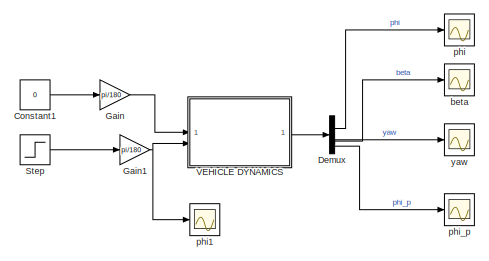
[diagram: root canvas - part 1/2, top left region]
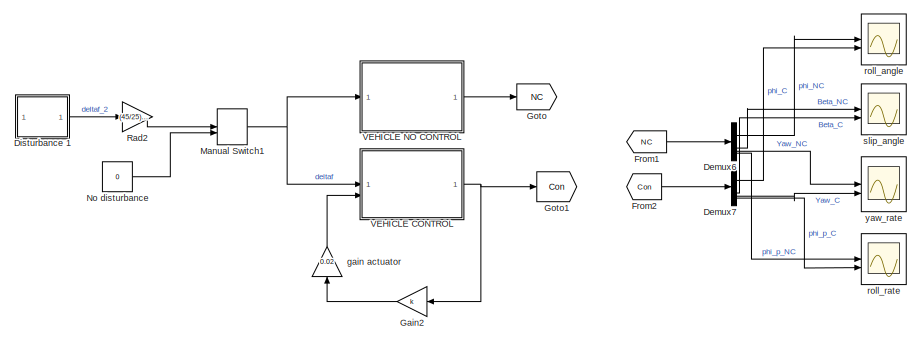
[diagram: root canvas - part 2/2, bottom right region]
MODEL slx_f5b43a20f666
KIND model
CONFIG AbsTol = auto
CONFIG EnableMultiTasking = off
CONFIG FixedStep = auto
CONFIG MaxStep = auto
CONFIG MinStep = auto
CONFIG RelTol = 1e-3
CONFIG SampleTimeConstraint = Unconstrained
CONFIG SolverName = VariableStepAuto
CONFIG StartTime = 0.0
CONFIG StopTime = 5
BLOCK [Constant] Constant1
  Value = 0
BLOCK [Demux] Demux
BLOCK [Demux] Demux6
BLOCK [Demux] Demux7
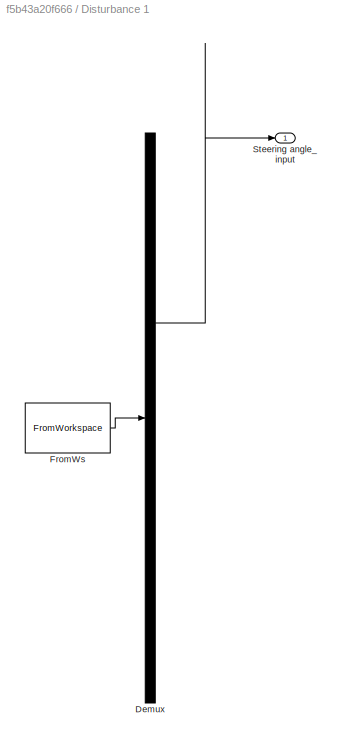
BLOCK [SubSystem] Disturbance 1
  ClipboardFcn = sigbuilder_block('clipboard');
  CloseFcn = sigbuilder_block('close');
  ContinueFcn = sigbuilder_block('continue');
  CopyFcn = sigbuilder_block('copy');
  DeleteFcn = sigbuilder_block('delete');
  LoadFcn = sigbuilder_block('load');
  MaskHideContents = on
  ModelCloseFcn = sigbuilder_block('modelClose');
  NameChangeFcn = sigbuilder_block('namechange');
  OpenFcn = sigbuilder_block('open',[265.8 141.6 550.8 400.2 ]);
  PauseFcn = sigbuilder_block('pause');
  PreSaveFcn = sigbuilder_block('preSave');
  StartFcn = sigbuilder_block('start');
  StopFcn = sigbuilder_block('stop');
  Tag = STV Subsys
BLOCK [Demux] Disturbance 1/Demux
  DisplayOption = none
  Outputs = 1
  Tag = STV Demux
BLOCK [FromWorkspace] Disturbance 1/FromWs
  Tag = STV FromWs
  VariableName = tuvar
BLOCK [Outport] Disturbance 1/Steering angle_ input
  Tag = STV Outport
BLOCK [From] From1
  GotoTag = NC
BLOCK [From] From2
  GotoTag = Con
BLOCK [Gain] Gain
  Gain = pi/180
BLOCK [Gain] Gain1
  Gain = pi/180
BLOCK [Gain] Gain2
  Gain = k
  Multiplication = Matrix(K*u)
  NameLocation = top
BLOCK [Goto] Goto
  GotoTag = NC
BLOCK [Goto] Goto1
  GotoTag = Con
BLOCK [ManualSwitch] Manual Switch1
BLOCK [Constant] No disturbance
  Value = 0
BLOCK [Gain] Rad2
  Gain = (45/25)*(pi/180)
BLOCK [Step] Step
  After = 3
  SampleTime = 0
  Time = 0
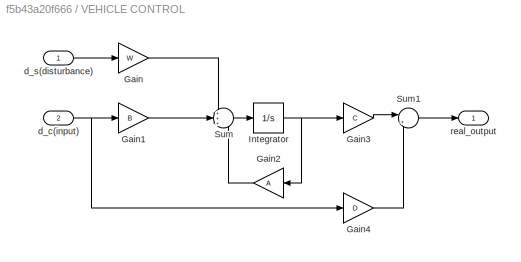
BLOCK [SubSystem] VEHICLE CONTROL
BLOCK [Gain] VEHICLE CONTROL/Gain
  Gain = W
  Multiplication = Matrix(K*u)
BLOCK [Gain] VEHICLE CONTROL/Gain1
  Gain = B
  Multiplication = Matrix(K*u)
BLOCK [Gain] VEHICLE CONTROL/Gain2
  Gain = A
  Multiplication = Matrix(K*u)
BLOCK [Gain] VEHICLE CONTROL/Gain3
  Gain = C
  Multiplication = Matrix(K*u)
BLOCK [Gain] VEHICLE CONTROL/Gain4
  Gain = D
  Multiplication = Matrix(K*u)
BLOCK [Integrator] VEHICLE CONTROL/Integrator
  InitialCondition = [0, 0, 0, 0]
BLOCK [Sum] VEHICLE CONTROL/Sum
  Inputs = +++
BLOCK [Sum] VEHICLE CONTROL/Sum1
  Inputs = |++
BLOCK [Inport] VEHICLE CONTROL/d_c(input)
  Port = 2
BLOCK [Inport] VEHICLE CONTROL/d_s(disturbance)
BLOCK [Outport] VEHICLE CONTROL/real_output
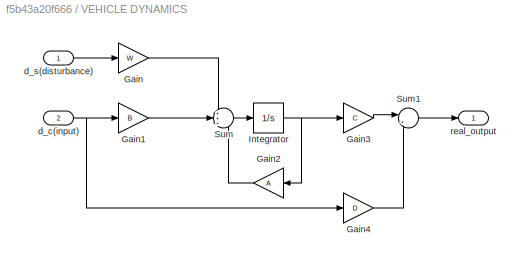
BLOCK [SubSystem] VEHICLE DYNAMICS
BLOCK [Gain] VEHICLE DYNAMICS/Gain
  Gain = W
  Multiplication = Matrix(K*u)
BLOCK [Gain] VEHICLE DYNAMICS/Gain1
  Gain = B
  Multiplication = Matrix(K*u)
BLOCK [Gain] VEHICLE DYNAMICS/Gain2
  Gain = A
  Multiplication = Matrix(K*u)
BLOCK [Gain] VEHICLE DYNAMICS/Gain3
  Gain = C
  Multiplication = Matrix(K*u)
BLOCK [Gain] VEHICLE DYNAMICS/Gain4
  Gain = D
  Multiplication = Matrix(K*u)
BLOCK [Integrator] VEHICLE DYNAMICS/Integrator
  InitialCondition = [0, 0, 0, 0]
BLOCK [Sum] VEHICLE DYNAMICS/Sum
  Inputs = +++
BLOCK [Sum] VEHICLE DYNAMICS/Sum1
  Inputs = |++
BLOCK [Inport] VEHICLE DYNAMICS/d_c(input)
  Port = 2
BLOCK [Inport] VEHICLE DYNAMICS/d_s(disturbance)
BLOCK [Outport] VEHICLE DYNAMICS/real_output
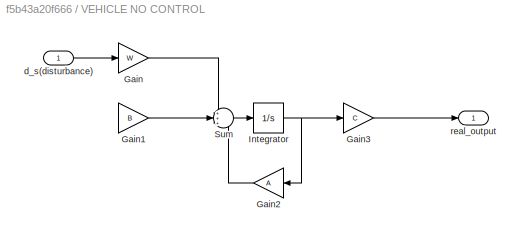
BLOCK [SubSystem] VEHICLE NO CONTROL
BLOCK [Gain] VEHICLE NO CONTROL/Gain
  Gain = W
  Multiplication = Matrix(K*u)
BLOCK [Gain] VEHICLE NO CONTROL/Gain1
  Gain = B
  Multiplication = Matrix(K*u)
BLOCK [Gain] VEHICLE NO CONTROL/Gain2
  Gain = A
  Multiplication = Matrix(K*u)
BLOCK [Gain] VEHICLE NO CONTROL/Gain3
  Gain = C
  Multiplication = Matrix(K*u)
BLOCK [Integrator] VEHICLE NO CONTROL/Integrator
  InitialCondition = [0, 0, 0, 0]
BLOCK [Sum] VEHICLE NO CONTROL/Sum
  Inputs = +++
BLOCK [Inport] VEHICLE NO CONTROL/d_s(disturbance)
BLOCK [Outport] VEHICLE NO CONTROL/real_output
BLOCK [Scope] beta
  Floating = off
  NumInputPorts = 1
  ScopeSpecificationString = Simulink.scopes.TimeScopeBlockCfg('CurrentConfiguration', extmgr.ConfigurationSet(extmgr.Configuration('Core','General UI',true,'FigureColor',[1 1 1]),extmgr.Configuration('Core','Source UI',true),extmgr.Configuration('Sources','WiredSimulink',true,'DataLoggingVariableName','ScopeData1'),extmgr.Configuration('Visuals','Time Domain',true,'SerializedDisplays',{struct('MinYLimReal','-0.28779','MaxYLi...<+1521ch>
BLOCK [Gain] gain actuator
  Gain = 0.02
  NameLocation = left
BLOCK [Scope] phi
  Floating = off
  NumInputPorts = 1
  ScopeSpecificationString = Simulink.scopes.TimeScopeBlockCfg('CurrentConfiguration', extmgr.ConfigurationSet(extmgr.Configuration('Core','General UI',true,'FigureColor',[1 1 1]),extmgr.Configuration('Core','Source UI',true),extmgr.Configuration('Sources','WiredSimulink',true),extmgr.Configuration('Visuals','Time Domain',true,'SerializedDisplays',{struct('MinYLimReal','-0.01023','MaxYLimReal','0.02353','YLabelReal','','MinYL...<+1534ch>
BLOCK [Scope] phi1
  Floating = off
  NumInputPorts = 1
  ScopeSpecificationString = Simulink.scopes.TimeScopeBlockCfg('CurrentConfiguration', extmgr.ConfigurationSet(extmgr.Configuration('Core','General UI',true,'FigureColor',[1 1 1]),extmgr.Configuration('Core','Source UI',true),extmgr.Configuration('Sources','WiredSimulink',true,'DataLoggingVariableName','ScopeData4'),extmgr.Configuration('Visuals','Time Domain',true,'SerializedDisplays',{struct('MinYLimReal','-0.00654','MaxYLi...<+1583ch>
BLOCK [Scope] phi_p
  Floating = off
  NumInputPorts = 1
  ScopeSpecificationString = Simulink.scopes.TimeScopeBlockCfg('CurrentConfiguration', extmgr.ConfigurationSet(extmgr.Configuration('Core','General UI',true,'FigureColor',[1 1 1]),extmgr.Configuration('Core','Source UI',true),extmgr.Configuration('Sources','WiredSimulink',true,'DataLoggingVariableName','ScopeData3'),extmgr.Configuration('Visuals','Time Domain',true,'SerializedDisplays',{struct('MinYLimReal','-0.05292','MaxYLi...<+1575ch>
BLOCK [Scope] roll_angle
  Floating = off
  NumInputPorts = 2
  ScopeSpecificationString = Simulink.scopes.TimeScopeBlockCfg('CurrentConfiguration', extmgr.ConfigurationSet(extmgr.Configuration('Core','General UI',true,'FigureColor',[1 1 1]),extmgr.Configuration('Core','Source UI',true),extmgr.Configuration('Sources','WiredSimulink',true,'DataLoggingVariableName','ScopeData1'),extmgr.Configuration('Visuals','Time Domain',true,'SerializedDisplays',{struct('MinYLimReal','-0.01145','MaxYLi...<+1811ch>
BLOCK [Scope] roll_rate
  Floating = off
  NumInputPorts = 2
  ScopeSpecificationString = Simulink.scopes.TimeScopeBlockCfg('CurrentConfiguration', extmgr.ConfigurationSet(extmgr.Configuration('Core','General UI',true,'FigureColor',[1 1 1]),extmgr.Configuration('Core','Source UI',true),extmgr.Configuration('Sources','WiredSimulink',true,'DataLoggingVariableName','ScopeData7'),extmgr.Configuration('Visuals','Time Domain',true,'SerializedDisplays',{struct('MinYLimReal','-0.05056','MaxYLi...<+1812ch>
BLOCK [Scope] slip_angle
  Floating = off
  NumInputPorts = 2
  ScopeSpecificationString = Simulink.scopes.TimeScopeBlockCfg('CurrentConfiguration', extmgr.ConfigurationSet(extmgr.Configuration('Core','General UI',true,'FigureColor',[1 1 1]),extmgr.Configuration('Core','Source UI',true),extmgr.Configuration('Sources','WiredSimulink',true,'DataLoggingVariableName','ScopeData6'),extmgr.Configuration('Visuals','Time Domain',true,'SerializedDisplays',{struct('MinYLimReal','-1.17051','MaxYLi...<+1809ch>
BLOCK [Scope] yaw
  Floating = off
  NumInputPorts = 1
  ScopeSpecificationString = Simulink.scopes.TimeScopeBlockCfg('CurrentConfiguration', extmgr.ConfigurationSet(extmgr.Configuration('Core','General UI',true,'FigureColor',[1 1 1]),extmgr.Configuration('Core','Source UI',true),extmgr.Configuration('Sources','WiredSimulink',true,'DataLoggingVariableName','ScopeData2'),extmgr.Configuration('Visuals','Time Domain',true,'SerializedDisplays',{struct('MinYLimReal','-0.10328','MaxYLi...<+1524ch>
BLOCK [Scope] yaw_rate
  Floating = off
  NumInputPorts = 2
  ScopeSpecificationString = Simulink.scopes.TimeScopeBlockCfg('CurrentConfiguration', extmgr.ConfigurationSet(extmgr.Configuration('Core','General UI',true,'FigureColor',[1 1 1]),extmgr.Configuration('Core','Source UI',true),extmgr.Configuration('Sources','WiredSimulink',true,'DataLoggingVariableName','ScopeData2'),extmgr.Configuration('Visuals','Time Domain',true,'SerializedDisplays',{struct('MinYLimReal','-3555216445794353...<+2819ch>
LINE Constant1:1 -> Gain:1
LINE Demux6:1 -> roll_angle:1
LINE Demux6:2 -> slip_angle:1
LINE Demux6:3 -> yaw_rate:1
LINE Demux6:4 -> roll_rate:1
LINE Demux7:1 -> roll_angle:2
LINE Demux7:2 -> slip_angle:2
LINE Demux7:3 -> yaw_rate:2
LINE Demux7:4 -> roll_rate:2
LINE Demux:1 -> phi:1
LINE Demux:2 -> beta:1
LINE Demux:3 -> yaw:1
LINE Demux:4 -> phi_p:1
LINE Disturbance 1:1 -> Rad2:1
LINE From1:1 -> Demux6:1
LINE From2:1 -> Demux7:1
NET Gain1:1 -> VEHICLE DYNAMICS:2, phi1:1
LINE Gain2:1 -> gain actuator:1
LINE Gain:1 -> VEHICLE DYNAMICS:1
NET Manual Switch1:1 -> VEHICLE CONTROL:1, VEHICLE NO CONTROL:1
LINE No disturbance:1 -> Manual Switch1:2
LINE Rad2:1 -> Manual Switch1:1
LINE Step:1 -> Gain1:1
LINE VEHICLE CONTROL/Gain1:1 -> VEHICLE CONTROL/Sum:2
LINE VEHICLE CONTROL/Gain2:1 -> VEHICLE CONTROL/Sum:3
LINE VEHICLE CONTROL/Gain3:1 -> VEHICLE CONTROL/Sum1:1
LINE VEHICLE CONTROL/Gain4:1 -> VEHICLE CONTROL/Sum1:2
LINE VEHICLE CONTROL/Gain:1 -> VEHICLE CONTROL/Sum:1
NET VEHICLE CONTROL/Integrator:1 -> VEHICLE CONTROL/Gain2:1, VEHICLE CONTROL/Gain3:1
LINE VEHICLE CONTROL/Sum1:1 -> VEHICLE CONTROL/real_output:1
LINE VEHICLE CONTROL/Sum:1 -> VEHICLE CONTROL/Integrator:1
NET VEHICLE CONTROL/d_c(input):1 -> VEHICLE CONTROL/Gain1:1, VEHICLE CONTROL/Gain4:1
LINE VEHICLE CONTROL/d_s(disturbance):1 -> VEHICLE CONTROL/Gain:1
NET VEHICLE CONTROL:1 -> Gain2:1, Goto1:1
LINE VEHICLE DYNAMICS/Gain1:1 -> VEHICLE DYNAMICS/Sum:2
LINE VEHICLE DYNAMICS/Gain2:1 -> VEHICLE DYNAMICS/Sum:3
LINE VEHICLE DYNAMICS/Gain3:1 -> VEHICLE DYNAMICS/Sum1:1
LINE VEHICLE DYNAMICS/Gain4:1 -> VEHICLE DYNAMICS/Sum1:2
LINE VEHICLE DYNAMICS/Gain:1 -> VEHICLE DYNAMICS/Sum:1
NET VEHICLE DYNAMICS/Integrator:1 -> VEHICLE DYNAMICS/Gain2:1, VEHICLE DYNAMICS/Gain3:1
LINE VEHICLE DYNAMICS/Sum1:1 -> VEHICLE DYNAMICS/real_output:1
LINE VEHICLE DYNAMICS/Sum:1 -> VEHICLE DYNAMICS/Integrator:1
NET VEHICLE DYNAMICS/d_c(input):1 -> VEHICLE DYNAMICS/Gain1:1, VEHICLE DYNAMICS/Gain4:1
LINE VEHICLE DYNAMICS/d_s(disturbance):1 -> VEHICLE DYNAMICS/Gain:1
LINE VEHICLE DYNAMICS:1 -> Demux:1
LINE VEHICLE NO CONTROL/Gain1:1 -> VEHICLE NO CONTROL/Sum:2
LINE VEHICLE NO CONTROL/Gain2:1 -> VEHICLE NO CONTROL/Sum:3
LINE VEHICLE NO CONTROL/Gain3:1 -> VEHICLE NO CONTROL/real_output:1
LINE VEHICLE NO CONTROL/Gain:1 -> VEHICLE NO CONTROL/Sum:1
NET VEHICLE NO CONTROL/Integrator:1 -> VEHICLE NO CONTROL/Gain2:1, VEHICLE NO CONTROL/Gain3:1
LINE VEHICLE NO CONTROL/Sum:1 -> VEHICLE NO CONTROL/Integrator:1
LINE VEHICLE NO CONTROL/d_s(disturbance):1 -> VEHICLE NO CONTROL/Gain:1
LINE VEHICLE NO CONTROL:1 -> Goto:1
LINE gain actuator:1 -> VEHICLE CONTROL:2
note: NET lines group one-source signal fan-out (src -> all destinations, sorted); 1:1 wires keep LINE
